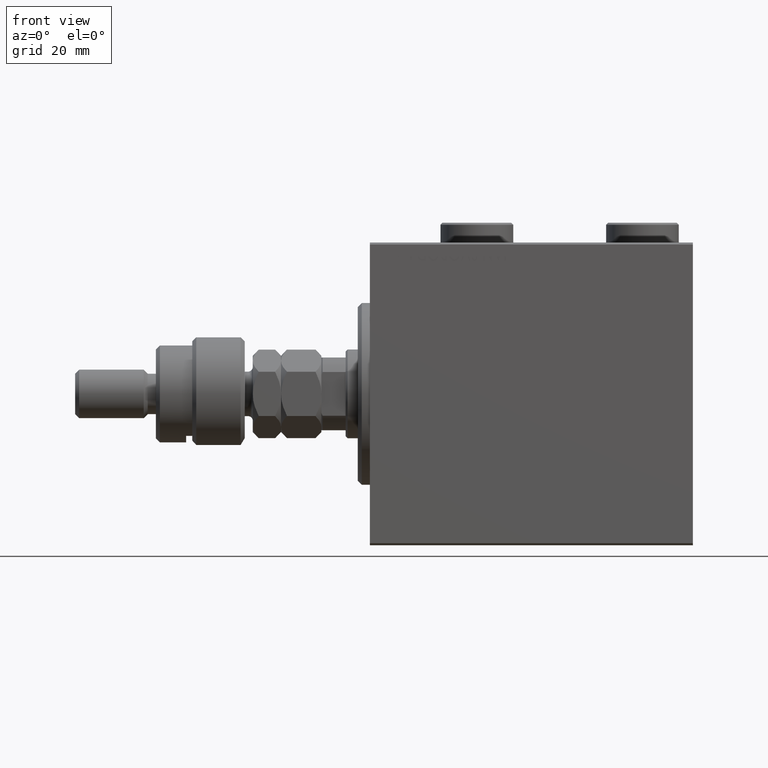
[diagram: clean part render]
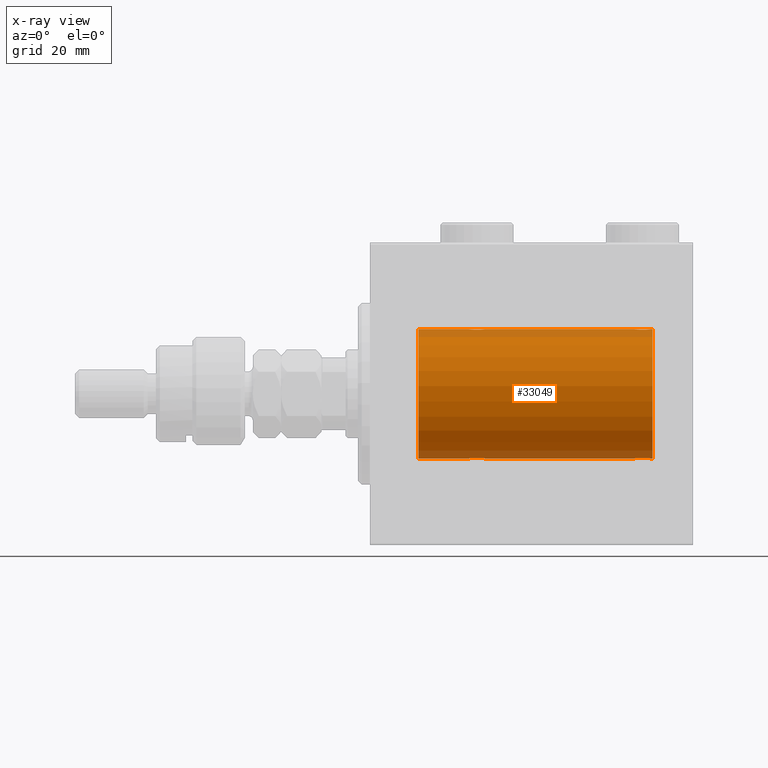
[diagram: x-ray — body ghosted, one internal face saturated and labeled with its STEP entity id]
A machine part, front view, then the same camera in x-ray: the body is ghosted and one INTERNAL B-rep face — a face not visible from any outside direction — is saturated and labeled: STEP entity #33049.
In plain terms, the highlighted cylindrical surface (partial cylindrical patch) has radius 16 mm, axis along (-1, -0, -0).
Its self-contained STEP definition (entity closure, byte-faithful):
#67 = VECTOR ( 'NONE', #9750, 1000.000000000000000 ) ;
#184 = CARTESIAN_POINT ( 'NONE',  ( 70.00000000000000000, 0.000000000000000000, 16.00000000000000000 ) ) ;
#199 = VECTOR ( 'NONE', #11833, 1000.000000000000000 ) ;
#343 = ORIENTED_EDGE ( 'NONE', *, *, #9096, .T. ) ;
#354 = LINE ( 'NONE', #18930, #199 ) ;
#927 = CARTESIAN_POINT ( 'NONE',  ( 28.49999999999999645, 1.959434851239213200E-15, -16.00000000000000000 ) ) ;
#1061 = CARTESIAN_POINT ( 'NONE',  ( 24.50000000000000355, -0.2611263091397209579, 16.00000000000000000 ) ) ;
#1181 = CARTESIAN_POINT ( 'NONE',  ( 26.63366663175618498, -1.999904855391105851, -15.87451985347842687 ) ) ;
#1378 = CARTESIAN_POINT ( 'NONE',  ( 67.76082820349367353, -1.987201773464430943, 15.87613558886576470 ) ) ;
#1781 = CARTESIAN_POINT ( 'NONE',  ( 24.90061418674620342, -1.228793614424124714, 15.95381972293797368 ) ) ;
#1865 = CARTESIAN_POINT ( 'NONE',  ( 67.63080408576577440, -2.000094120337579273, 15.87449600834271024 ) ) ;
#2026 = CARTESIAN_POINT ( 'NONE',  ( 26.76082820349364866, -1.987201773464435828, 15.87613558886576470 ) ) ;
#2098 = CARTESIAN_POINT ( 'NONE',  ( 68.50078365753405762, -1.736521253711147628, 15.90565326803670665 ) ) ;
#2127 = CARTESIAN_POINT ( 'NONE',  ( 65.90236864042803688, -1.231048876942802295, -15.95364199493483426 ) ) ;
#2306 = B_SPLINE_CURVE_WITH_KNOTS ( 'NONE', 3,
 ( #31251, #27332, #31747, #28062, #12905, #27835, #12401, #39355, #35422, #24145, #43016, #42540, #35902, #6024, #38868, #5069, #28307, #9456, #16320, #13366, #16562, #2127, #23663, #20724, #24637, #39112 ),
 .UNSPECIFIED., .F., .F.,
 ( 4, 2, 2, 2, 2, 2, 2, 2, 2, 2, 2, 2, 4 ),
 ( 0.006259031236593880741, 0.007041222816026957571, 0.007823414395460033532, 0.008214510185176571513, 0.008605605974893109494, 0.008996701764609649210, 0.009387797554326187191, 0.009778893344042725172, 0.01016998913375926315, 0.01056108492347580113, 0.01095218071319234085, 0.01173437229262538559, 0.01251656387205843206 ),
 .UNSPECIFIED. ) ;
#3166 = ORIENTED_EDGE ( 'NONE', *, *, #10590, .T. ) ;
#3375 = DIRECTION ( 'NONE',  ( -1.000000000000000000, -0.000000000000000000, -0.000000000000000000 ) ) ;
#3810 = DIRECTION ( 'NONE',  ( -1.000000000000000000, 0.000000000000000000, 0.000000000000000000 ) ) ;
#4962 = CARTESIAN_POINT ( 'NONE',  ( 26.63080408576578861, -2.000094120337581050, 15.87449600834271735 ) ) ;
#5037 = CARTESIAN_POINT ( 'NONE',  ( 65.50000000000001421, -0.2611263091397203473, 16.00000000000000355 ) ) ;
#5069 = CARTESIAN_POINT ( 'NONE',  ( 66.98335998918946643, -1.936513707523809247, -15.88239801746206226 ) ) ;
#5083 = CARTESIAN_POINT ( 'NONE',  ( 27.38846140829280529, -1.796613193944152753, -15.89889131367403330 ) ) ;
#5312 = CARTESIAN_POINT ( 'NONE',  ( 25.98335998918949841, -1.936513707523809469, -15.88239801746204805 ) ) ;
#6024 = CARTESIAN_POINT ( 'NONE',  ( 67.36919591423422560, -2.000094120337576165, -15.87449600834271024 ) ) ;
#6746 = CARTESIAN_POINT ( 'NONE',  ( 70.00000000000000000, 1.959434878635765131E-15, -16.00000000000000000 ) ) ;
#7069 = AXIS2_PLACEMENT_3D ( 'NONE', #14615, #44264, #37627 ) ;
#7172 = VECTOR ( 'NONE', #30871, 1000.000000000000000 ) ;
#7323 = CARTESIAN_POINT ( 'NONE',  ( 70.00000000000000000, 0.000000000000000000, 0.000000000000000000 ) ) ;
#7739 = VERTEX_POINT ( 'NONE', #31732 ) ;
#8006 = AXIS2_PLACEMENT_3D ( 'NONE', #40580, #3810, #33678 ) ;
#8241 = LINE ( 'NONE', #184, #16030 ) ;
#8257 = CARTESIAN_POINT ( 'NONE',  ( 25.49921634246596014, -1.736521253711144963, -15.90565326803671375 ) ) ;
#8613 = CARTESIAN_POINT ( 'NONE',  ( 28.44674004695639624, -0.5272875822566815973, 15.99312147175146670 ) ) ;
#8737 = CARTESIAN_POINT ( 'NONE',  ( 28.09938581325380724, -1.228793614424118497, -15.95381972293796835 ) ) ;
#8819 = VERTEX_POINT ( 'NONE', #36565 ) ;
#9096 = EDGE_CURVE ( 'NONE', #47096, #35115, #2306, .T. ) ;
#9189 = CARTESIAN_POINT ( 'NONE',  ( 69.09763135957201996, -1.231048876942789194, 15.95364199493483426 ) ) ;
#9287 = CARTESIAN_POINT ( 'NONE',  ( 69.50000000000000000, 1.959434851248285101E-15, -16.00000000000000000 ) ) ;
#9312 = CARTESIAN_POINT ( 'NONE',  ( 70.00000000000000000, 0.000000000000000000, 16.00000000000000000 ) ) ;
#9348 = CARTESIAN_POINT ( 'NONE',  ( 24.55248858968731085, -0.5244724041436337192, 15.99321727742820975 ) ) ;
#9456 = CARTESIAN_POINT ( 'NONE',  ( 66.61407850031504552, -1.797863738508698628, -15.89874935709250536 ) ) ;
#9674 = CARTESIAN_POINT ( 'NONE',  ( 66.61153859170718761, -1.796613193944154085, 15.89889131367403330 ) ) ;
#9750 = DIRECTION ( 'NONE',  ( -1.000000000000000000, -0.000000000000000000, -0.000000000000000000 ) ) ;
#9907 = CARTESIAN_POINT ( 'NONE',  ( 68.82104334803406687, -1.507256214862775723, 15.92911555180482175 ) ) ;
#10590 = EDGE_CURVE ( 'NONE', #40628, #27366, #13908, .T. ) ;
#10994 = CYLINDRICAL_SURFACE ( 'NONE', #37881, 16.00000000000000000 ) ;
#11319 = VERTEX_POINT ( 'NONE', #17553 ) ;
#11833 = DIRECTION ( 'NONE',  ( -1.000000000000000000, -0.000000000000000000, -0.000000000000000000 ) ) ;
#11928 = CARTESIAN_POINT ( 'NONE',  ( 27.50320784791317763, -1.735114343256362712, -15.90580722143557502 ) ) ;
#11983 = CARTESIAN_POINT ( 'NONE',  ( 28.49999999999999645, -1.207828523974853969E-15, 16.00000000000000000 ) ) ;
#12179 = CARTESIAN_POINT ( 'NONE',  ( 25.17895665196594379, -1.507256214862784161, -15.92911555180481820 ) ) ;
#12346 = ORIENTED_EDGE ( 'NONE', *, *, #13952, .T. ) ;
#12401 = CARTESIAN_POINT ( 'NONE',  ( 68.72028033478413533, -1.589957129871033104, -15.92097237843275259 ) ) ;
#12542 = CARTESIAN_POINT ( 'NONE',  ( 27.71821872840285295, -1.591545514129674821, 15.92081325887754595 ) ) ;
#12665 = CARTESIAN_POINT ( 'NONE',  ( 27.14636362870458086, -1.897207606501646104, -15.88720136683947537 ) ) ;
#12874 = CARTESIAN_POINT ( 'NONE',  ( 65.90061418674619631, -1.228793614424119829, 15.95381972293797013 ) ) ;
#12905 = CARTESIAN_POINT ( 'NONE',  ( 69.09938581325381790, -1.228793614424116942, -15.95381972293797368 ) ) ;
#13366 = CARTESIAN_POINT ( 'NONE',  ( 66.28178127159715416, -1.591545514129671712, -15.92081325887754417 ) ) ;
#13586 = CARTESIAN_POINT ( 'NONE',  ( 66.85363637129539427, -1.897207606501646771, 15.88720136683946471 ) ) ;
#13908 = B_SPLINE_CURVE_WITH_KNOTS ( 'NONE', 3,
 ( #31390, #1061, #9348, #39003, #1781, #16705, #31149, #24531, #39493, #27478, #42179, #16935, #46578, #4962, #2026, #20125, #31643, #46097, #42427, #12542, #23557, #27231, #24284, #8613, #19889, #30917 ),
 .UNSPECIFIED., .F., .F.,
 ( 4, 2, 2, 2, 2, 2, 2, 2, 2, 2, 2, 2, 4 ),
 ( 0.006259031236593858190, 0.007041222816026928080, 0.007823414395459998838, 0.008214510185176533349, 0.008605605974893067861, 0.008996701764609604107, 0.009387797554326138619, 0.009778893344042673130, 0.01016998913375920938, 0.01056108492347574389, 0.01095218071319227840, 0.01173437229262534048, 0.01251656387205840430 ),
 .UNSPECIFIED. ) ;
#13952 = EDGE_CURVE ( 'NONE', #11319, #26873, #33973, .T. ) ;
#14615 = CARTESIAN_POINT ( 'NONE',  ( 11.99999999999999645, 0.000000000000000000, 0.000000000000000000 ) ) ;
#14789 = CARTESIAN_POINT ( 'NONE',  ( 70.00000000000000000, 0.000000000000000000, 16.00000000000000000 ) ) ;
#15142 = CARTESIAN_POINT ( 'NONE',  ( 65.50000000000000000, -5.213754752715431108E-15, -16.00000000000000000 ) ) ;
#15364 = CARTESIAN_POINT ( 'NONE',  ( 24.75321871145306218, -1.008257970366813749, -15.97001510549667458 ) ) ;
#15850 = CARTESIAN_POINT ( 'NONE',  ( 28.50000000000000355, -0.2611263091397186265, -16.00000000000000355 ) ) ;
#16030 = VECTOR ( 'NONE', #3375, 1000.000000000000000 ) ;
#16320 = CARTESIAN_POINT ( 'NONE',  ( 66.49921634246594238, -1.736521253711144963, -15.90565326803670665 ) ) ;
#16562 = CARTESIAN_POINT ( 'NONE',  ( 66.17895665196596156, -1.507256214862785937, -15.92911555180481820 ) ) ;
#16705 = CARTESIAN_POINT ( 'NONE',  ( 25.17695155286792286, -1.505501573616977673, 15.92928245046054947 ) ) ;
#16935 = CARTESIAN_POINT ( 'NONE',  ( 26.23629537121825095, -1.986819684797424435, 15.87618369521983475 ) ) ;
#17004 = CARTESIAN_POINT ( 'NONE',  ( 66.98062885452073090, -1.935780515549992975, 15.88248768234622865 ) ) ;
#17054 = EDGE_CURVE ( 'NONE', #43423, #8819, #24479, .T. ) ;
#17248 = CARTESIAN_POINT ( 'NONE',  ( 66.27971966521590730, -1.589957129871035102, 15.92097237843275259 ) ) ;
#17482 = ORIENTED_EDGE ( 'NONE', *, *, #24824, .F. ) ;
#17553 = CARTESIAN_POINT ( 'NONE',  ( 65.50000000000000000, -2.738767290746308786E-23, 16.00000000000000000 ) ) ;
#18042 = VECTOR ( 'NONE', #45157, 1000.000000000000000 ) ;
#18930 = CARTESIAN_POINT ( 'NONE',  ( 70.00000000000000000, 0.000000000000000000, 16.00000000000000000 ) ) ;
#19193 = CARTESIAN_POINT ( 'NONE',  ( 24.50000000000000000, -2.739635037742051899E-23, 16.00000000000000000 ) ) ;
#19508 = CARTESIAN_POINT ( 'NONE',  ( 27.72028033478412112, -1.589957129871027330, -15.92097237843274904 ) ) ;
#19592 = CARTESIAN_POINT ( 'NONE',  ( 70.00000000000000000, 1.959434878635765131E-15, -16.00000000000000000 ) ) ;
#19685 = VERTEX_POINT ( 'NONE', #9312 ) ;
#19758 = CARTESIAN_POINT ( 'NONE',  ( 25.85623329282660166, -1.898087287925298794, -15.88709570026284545 ) ) ;
#19889 = CARTESIAN_POINT ( 'NONE',  ( 28.49999999999999289, -0.2645044045393371013, 16.00000000000000000 ) ) ;
#20069 = EDGE_CURVE ( 'NONE', #44576, #7739, #28190, .T. ) ;
#20125 = CARTESIAN_POINT ( 'NONE',  ( 27.01664001081050515, -1.936513707523814354, 15.88239801746204805 ) ) ;
#20724 = CARTESIAN_POINT ( 'NONE',  ( 65.55325995304360731, -0.5272875822566849280, -15.99312147175147025 ) ) ;
#20925 = CARTESIAN_POINT ( 'NONE',  ( 66.17695155286794773, -1.505501573616972788, 15.92928245046055657 ) ) ;
#21990 = ORIENTED_EDGE ( 'NONE', *, *, #38981, .T. ) ;
#22269 = DIRECTION ( 'NONE',  ( -1.000000000000000000, -0.000000000000000000, -0.000000000000000000 ) ) ;
#23557 = CARTESIAN_POINT ( 'NONE',  ( 27.82104334803405266, -1.507256214862787713, 15.92911555180482530 ) ) ;
#23663 = CARTESIAN_POINT ( 'NONE',  ( 65.75321871145310126, -1.008257970366813083, -15.97001510549667813 ) ) ;
#23681 = CARTESIAN_POINT ( 'NONE',  ( 28.44751141031268915, -0.5244724041436300555, -15.99321727742820620 ) ) ;
#24145 = CARTESIAN_POINT ( 'NONE',  ( 68.14636362870457731, -1.897207606501646104, -15.88720136683947182 ) ) ;
#24284 = CARTESIAN_POINT ( 'NONE',  ( 28.24678128854693426, -1.008257970366811751, 15.97001510549667103 ) ) ;
#24361 = CARTESIAN_POINT ( 'NONE',  ( 68.14376670717344098, -1.898087287925297462, 15.88709570026284723 ) ) ;
#24479 = B_SPLINE_CURVE_WITH_KNOTS ( 'NONE', 3,
 ( #927, #15850, #23681, #34950, #8737, #26872, #19508, #11928, #5083, #12665, #41828, #34450, #1181, #38640, #38882, #5312, #19758, #30786, #8257, #45734, #12179, #27112, #15364, #30298, #45235, #42057 ),
 .UNSPECIFIED., .F., .F.,
 ( 4, 2, 2, 2, 2, 2, 2, 2, 2, 2, 2, 2, 4 ),
 ( 0.006259031236593877272, 0.007041222816026943693, 0.007823414395460009246, 0.008214510185176542023, 0.008605605974893074800, 0.008996701764609607577, 0.009387797554326140353, 0.009778893344042673130, 0.01016998913375920591, 0.01056108492347573868, 0.01095218071319227146, 0.01173437229262534222, 0.01251656387205841471 ),
 .UNSPECIFIED. ) ;
#24531 = CARTESIAN_POINT ( 'NONE',  ( 25.49679215208682592, -1.735114343256370262, 15.90580722143557502 ) ) ;
#24637 = CARTESIAN_POINT ( 'NONE',  ( 65.50000000000001421, -0.2645044045393449283, -16.00000000000000355 ) ) ;
#24824 = EDGE_CURVE ( 'NONE', #45731, #19685, #33041, .T. ) ;
#24893 = EDGE_LOOP ( 'NONE', ( #17482, #21990, #343, #35061, #40968, #48082, #27405, #36961, #3166, #36113, #12346, #37610 ) ) ;
#25258 = VECTOR ( 'NONE', #46782, 1000.000000000000000 ) ;
#26872 = CARTESIAN_POINT ( 'NONE',  ( 27.82304844713206293, -1.505501573616970568, -15.92928245046054947 ) ) ;
#26873 = VERTEX_POINT ( 'NONE', #42224 ) ;
#27112 = CARTESIAN_POINT ( 'NONE',  ( 24.90236864042802267, -1.231048876942801407, -15.95364199493483426 ) ) ;
#27231 = CARTESIAN_POINT ( 'NONE',  ( 28.09763135957198799, -1.231048876942802961, 15.95364199493483781 ) ) ;
#27332 = CARTESIAN_POINT ( 'NONE',  ( 69.50000000000000000, -0.2611263091397181269, -16.00000000000000000 ) ) ;
#27366 = VERTEX_POINT ( 'NONE', #11983 ) ;
#27405 = ORIENTED_EDGE ( 'NONE', *, *, #20069, .T. ) ;
#27478 = CARTESIAN_POINT ( 'NONE',  ( 25.85363637129542624, -1.897207606501653432, 15.88720136683947182 ) ) ;
#27560 = CARTESIAN_POINT ( 'NONE',  ( 69.24678128854694137, -1.008257970366810641, 15.97001510549667458 ) ) ;
#27806 = CARTESIAN_POINT ( 'NONE',  ( 66.49679215208684013, -1.735114343256368930, 15.90580722143557857 ) ) ;
#27835 = CARTESIAN_POINT ( 'NONE',  ( 68.82304844713208070, -1.505501573616970346, -15.92928245046055302 ) ) ;
#28036 = CARTESIAN_POINT ( 'NONE',  ( 65.75183372993789988, -1.005876079953903046, 15.97016854943970188 ) ) ;
#28062 = CARTESIAN_POINT ( 'NONE',  ( 69.24816627006211434, -1.005876079953901492, -15.97016854943969832 ) ) ;
#28190 = CIRCLE ( 'NONE', #7069, 16.00000000000000000 ) ;
#28277 = CARTESIAN_POINT ( 'NONE',  ( 68.01664001081053357, -1.936513707523808359, 15.88239801746206226 ) ) ;
#28307 = CARTESIAN_POINT ( 'NONE',  ( 66.85623329282658744, -1.898087287925300348, -15.88709570026284723 ) ) ;
#29151 = CARTESIAN_POINT ( 'NONE',  ( 11.99999999999999645, 1.959434878635765131E-15, -16.00000000000000000 ) ) ;
#29606 = FACE_OUTER_BOUND ( 'NONE', #24893, .T. ) ;
#29745 = CARTESIAN_POINT ( 'NONE',  ( 70.00000000000000000, 1.959434878635765131E-15, -16.00000000000000000 ) ) ;
#30219 = LINE ( 'NONE', #14789, #18042 ) ;
#30298 = CARTESIAN_POINT ( 'NONE',  ( 24.55325995304361086, -0.5272875822566835957, -15.99312147175147736 ) ) ;
#30786 = CARTESIAN_POINT ( 'NONE',  ( 25.61407850031505617, -1.797863738508699294, -15.89874935709251247 ) ) ;
#30871 = DIRECTION ( 'NONE',  ( -1.000000000000000000, -0.000000000000000000, -0.000000000000000000 ) ) ;
#30917 = CARTESIAN_POINT ( 'NONE',  ( 28.49999999999999645, -1.207828523974853969E-15, 16.00000000000000000 ) ) ;
#31149 = CARTESIAN_POINT ( 'NONE',  ( 25.27971966521589664, -1.589957129871035768, 15.92097237843274549 ) ) ;
#31251 = CARTESIAN_POINT ( 'NONE',  ( 69.50000000000000000, 1.959434851248285101E-15, -16.00000000000000000 ) ) ;
#31390 = CARTESIAN_POINT ( 'NONE',  ( 24.50000000000000000, -2.739635037742051899E-23, 16.00000000000000000 ) ) ;
#31472 = CARTESIAN_POINT ( 'NONE',  ( 65.50000000000000000, -2.738767290746308786E-23, 16.00000000000000000 ) ) ;
#31643 = CARTESIAN_POINT ( 'NONE',  ( 27.14376670717340545, -1.898087287925302125, 15.88709570026284545 ) ) ;
#31732 = CARTESIAN_POINT ( 'NONE',  ( 11.99999999999999645, 0.000000000000000000, 16.00000000000000000 ) ) ;
#31747 = CARTESIAN_POINT ( 'NONE',  ( 69.44751141031269981, -0.5244724041436328310, -15.99321727742821331 ) ) ;
#31786 = LINE ( 'NONE', #46721, #67 ) ;
#32186 = CARTESIAN_POINT ( 'NONE',  ( 69.44674004695640690, -0.5272875822566811532, 15.99312147175147025 ) ) ;
#33041 = CIRCLE ( 'NONE', #8006, 16.00000000000000000 ) ;
#33049 = ADVANCED_FACE ( 'NONE', ( #29606 ), #10994, .F. ) ;
#33678 = DIRECTION ( 'NONE',  ( 0.000000000000000000, 0.000000000000000000, 1.000000000000000000 ) ) ;
#33925 = EDGE_CURVE ( 'NONE', #11319, #27366, #8241, .T. ) ;
#33973 = B_SPLINE_CURVE_WITH_KNOTS ( 'NONE', 3,
 ( #31472, #5037, #46423, #28036, #12874, #20925, #17248, #27806, #9674, #13586, #17004, #42989, #35393, #1865, #1378, #28277, #24361, #39324, #2098, #42755, #9907, #9189, #27560, #32186, #39565, #47126 ),
 .UNSPECIFIED., .F., .F.,
 ( 4, 2, 2, 2, 2, 2, 2, 2, 2, 2, 2, 2, 4 ),
 ( 0.006259031236593860792, 0.007041222816026923743, 0.007823414395459986695, 0.008214510185176517737, 0.008605605974893048779, 0.008996701764609579821, 0.009387797554326112598, 0.009778893344042641905, 0.01016998913375917295, 0.01056108492347570399, 0.01095218071319223503, 0.01173437229262532661, 0.01251656387205841645 ),
 .UNSPECIFIED. ) ;
#34450 = CARTESIAN_POINT ( 'NONE',  ( 26.76370462878175260, -1.986819684797417995, -15.87618369521984185 ) ) ;
#34950 = CARTESIAN_POINT ( 'NONE',  ( 28.24816627006211078, -1.005876079953899049, -15.97016854943970188 ) ) ;
#35061 = ORIENTED_EDGE ( 'NONE', *, *, #40254, .T. ) ;
#35115 = VERTEX_POINT ( 'NONE', #15142 ) ;
#35270 = LINE ( 'NONE', #19592, #7172 ) ;
#35393 = CARTESIAN_POINT ( 'NONE',  ( 67.36633336824382923, -1.999904855391108960, 15.87451985347843042 ) ) ;
#35422 = CARTESIAN_POINT ( 'NONE',  ( 68.38846140829284082, -1.796613193944151865, -15.89889131367403330 ) ) ;
#35902 = CARTESIAN_POINT ( 'NONE',  ( 67.63366663175619919, -1.999904855391107183, -15.87451985347843042 ) ) ;
#36113 = ORIENTED_EDGE ( 'NONE', *, *, #33925, .F. ) ;
#36565 = CARTESIAN_POINT ( 'NONE',  ( 24.50000000000000000, -2.931586893697621157E-15, -16.00000000000000000 ) ) ;
#36961 = ORIENTED_EDGE ( 'NONE', *, *, #38261, .F. ) ;
#37220 = DIRECTION ( 'NONE',  ( 0.000000000000000000, 0.000000000000000000, 1.000000000000000000 ) ) ;
#37610 = ORIENTED_EDGE ( 'NONE', *, *, #42644, .F. ) ;
#37627 = DIRECTION ( 'NONE',  ( 0.000000000000000000, 0.000000000000000000, 1.000000000000000000 ) ) ;
#37881 = AXIS2_PLACEMENT_3D ( 'NONE', #7323, #22269, #37220 ) ;
#38261 = EDGE_CURVE ( 'NONE', #40628, #7739, #30219, .T. ) ;
#38640 = CARTESIAN_POINT ( 'NONE',  ( 26.36919591423421139, -2.000094120337574388, -15.87449600834271024 ) ) ;
#38868 = CARTESIAN_POINT ( 'NONE',  ( 67.23917179650634068, -1.987201773464430499, -15.87613558886576826 ) ) ;
#38882 = CARTESIAN_POINT ( 'NONE',  ( 26.23917179650637266, -1.987201773464430055, -15.87613558886576470 ) ) ;
#38981 = EDGE_CURVE ( 'NONE', #45731, #47096, #31786, .T. ) ;
#39003 = CARTESIAN_POINT ( 'NONE',  ( 24.75183372993787856, -1.005876079953904600, 15.97016854943970543 ) ) ;
#39112 = CARTESIAN_POINT ( 'NONE',  ( 65.50000000000000000, -5.213754752715431108E-15, -16.00000000000000000 ) ) ;
#39280 = CARTESIAN_POINT ( 'NONE',  ( 28.49999999999999645, 1.959434851239213200E-15, -16.00000000000000000 ) ) ;
#39324 = CARTESIAN_POINT ( 'NONE',  ( 68.38592149968496869, -1.797863738508694853, 15.89874935709250536 ) ) ;
#39355 = CARTESIAN_POINT ( 'NONE',  ( 68.50320784791315987, -1.735114343256366931, -15.90580722143557502 ) ) ;
#39493 = CARTESIAN_POINT ( 'NONE',  ( 25.61153859170720537, -1.796613193944160969, 15.89889131367403685 ) ) ;
#39565 = CARTESIAN_POINT ( 'NONE',  ( 69.49999999999997158, -0.2645044045393390997, 15.99999999999999645 ) ) ;
#40254 = EDGE_CURVE ( 'NONE', #35115, #43423, #35270, .T. ) ;
#40320 = LINE ( 'NONE', #6746, #25258 ) ;
#40580 = CARTESIAN_POINT ( 'NONE',  ( 70.00000000000000000, 0.000000000000000000, 0.000000000000000000 ) ) ;
#40628 = VERTEX_POINT ( 'NONE', #19193 ) ;
#40968 = ORIENTED_EDGE ( 'NONE', *, *, #17054, .T. ) ;
#41828 = CARTESIAN_POINT ( 'NONE',  ( 27.01937114547927266, -1.935780515549990088, -15.88248768234623576 ) ) ;
#42057 = CARTESIAN_POINT ( 'NONE',  ( 24.50000000000000000, -2.931586893697621157E-15, -16.00000000000000000 ) ) ;
#42179 = CARTESIAN_POINT ( 'NONE',  ( 25.98062885452072734, -1.935780515549995862, 15.88248768234623221 ) ) ;
#42224 = CARTESIAN_POINT ( 'NONE',  ( 69.50000000000000000, 3.590027768233731054E-15, 16.00000000000000000 ) ) ;
#42427 = CARTESIAN_POINT ( 'NONE',  ( 27.50078365753405407, -1.736521253711149182, 15.90565326803671375 ) ) ;
#42540 = CARTESIAN_POINT ( 'NONE',  ( 67.76370462878180945, -1.986819684797418661, -15.87618369521984185 ) ) ;
#42644 = EDGE_CURVE ( 'NONE', #19685, #26873, #354, .T. ) ;
#42755 = CARTESIAN_POINT ( 'NONE',  ( 68.71821872840286005, -1.591545514129673267, 15.92081325887755305 ) ) ;
#42989 = CARTESIAN_POINT ( 'NONE',  ( 67.23629537121824740, -1.986819684797422658, 15.87618369521983830 ) ) ;
#43016 = CARTESIAN_POINT ( 'NONE',  ( 68.01937114547928331, -1.935780515549987646, -15.88248768234623576 ) ) ;
#43423 = VERTEX_POINT ( 'NONE', #39280 ) ;
#44264 = DIRECTION ( 'NONE',  ( -1.000000000000000000, 0.000000000000000000, 0.000000000000000000 ) ) ;
#44496 = EDGE_CURVE ( 'NONE', #8819, #44576, #40320, .T. ) ;
#44576 = VERTEX_POINT ( 'NONE', #29151 ) ;
#45157 = DIRECTION ( 'NONE',  ( -1.000000000000000000, -0.000000000000000000, -0.000000000000000000 ) ) ;
#45235 = CARTESIAN_POINT ( 'NONE',  ( 24.50000000000000711, -0.2645044045393414311, -16.00000000000000355 ) ) ;
#45731 = VERTEX_POINT ( 'NONE', #29745 ) ;
#45734 = CARTESIAN_POINT ( 'NONE',  ( 25.28178127159713995, -1.591545514129671046, -15.92081325887754417 ) ) ;
#46097 = CARTESIAN_POINT ( 'NONE',  ( 27.38592149968496514, -1.797863738508701736, 15.89874935709250892 ) ) ;
#46423 = CARTESIAN_POINT ( 'NONE',  ( 65.55248858968732861, -0.5244724041436340523, 15.99321727742820975 ) ) ;
#46578 = CARTESIAN_POINT ( 'NONE',  ( 26.36633336824380436, -1.999904855391111402, 15.87451985347842687 ) ) ;
#46721 = CARTESIAN_POINT ( 'NONE',  ( 70.00000000000000000, 1.959434878635765131E-15, -16.00000000000000000 ) ) ;
#46782 = DIRECTION ( 'NONE',  ( -1.000000000000000000, -0.000000000000000000, -0.000000000000000000 ) ) ;
#47096 = VERTEX_POINT ( 'NONE', #9287 ) ;
#47126 = CARTESIAN_POINT ( 'NONE',  ( 69.50000000000000000, 3.590027768233731054E-15, 16.00000000000000000 ) ) ;
#48082 = ORIENTED_EDGE ( 'NONE', *, *, #44496, .T. ) ;